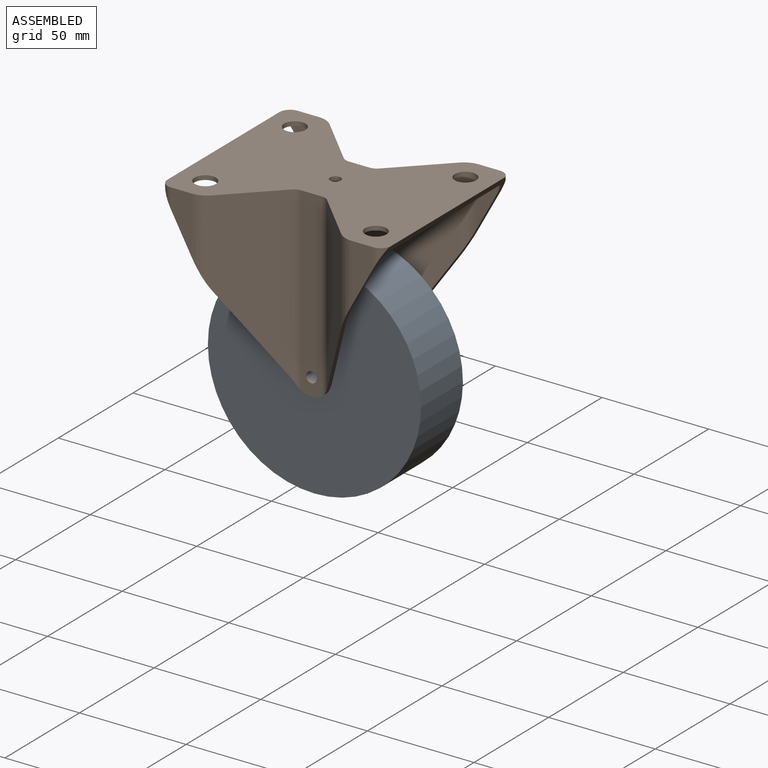
[diagram: assembled view]
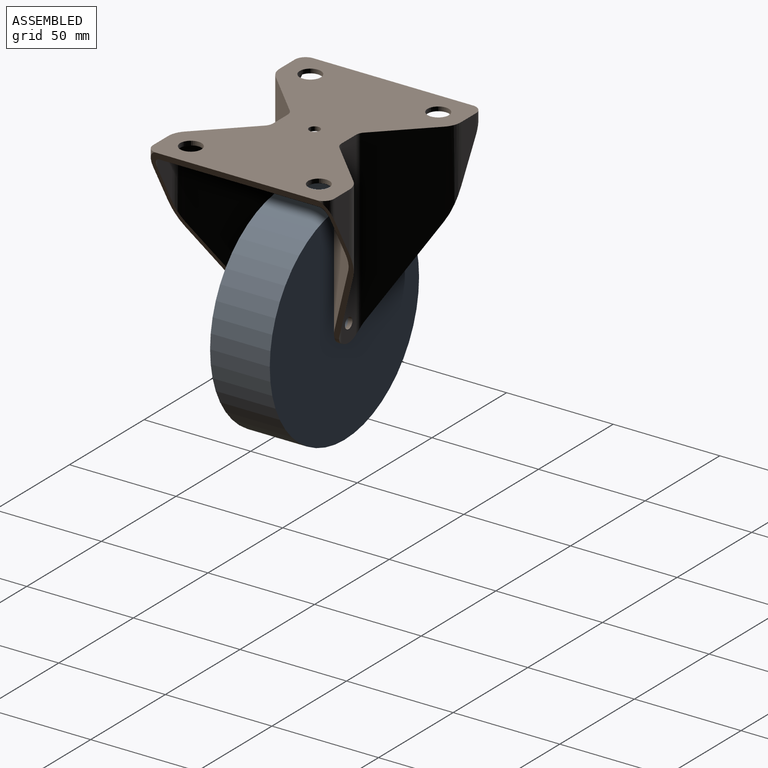
[diagram: assembled view, second angle]
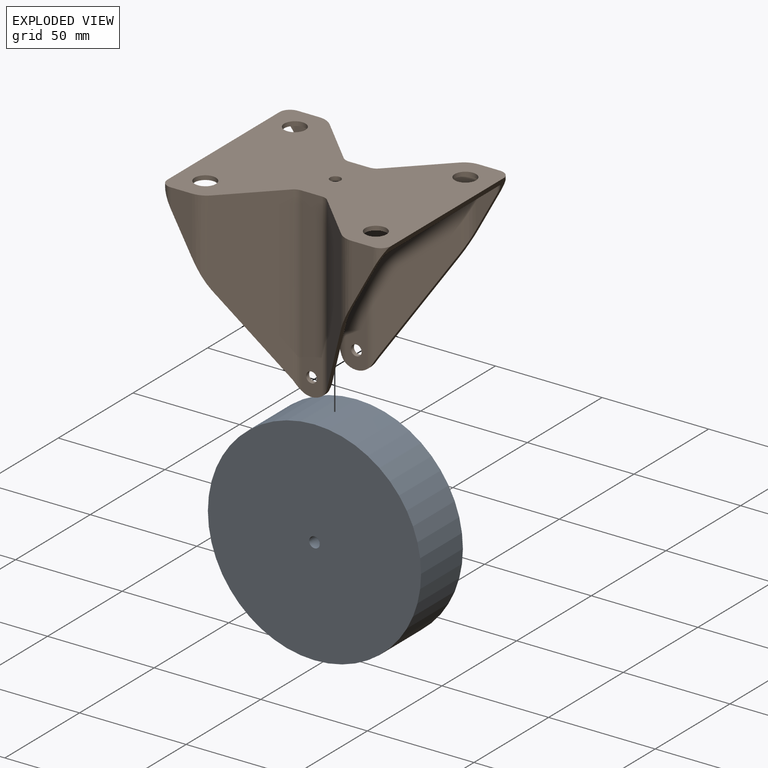
[diagram: exploded view]
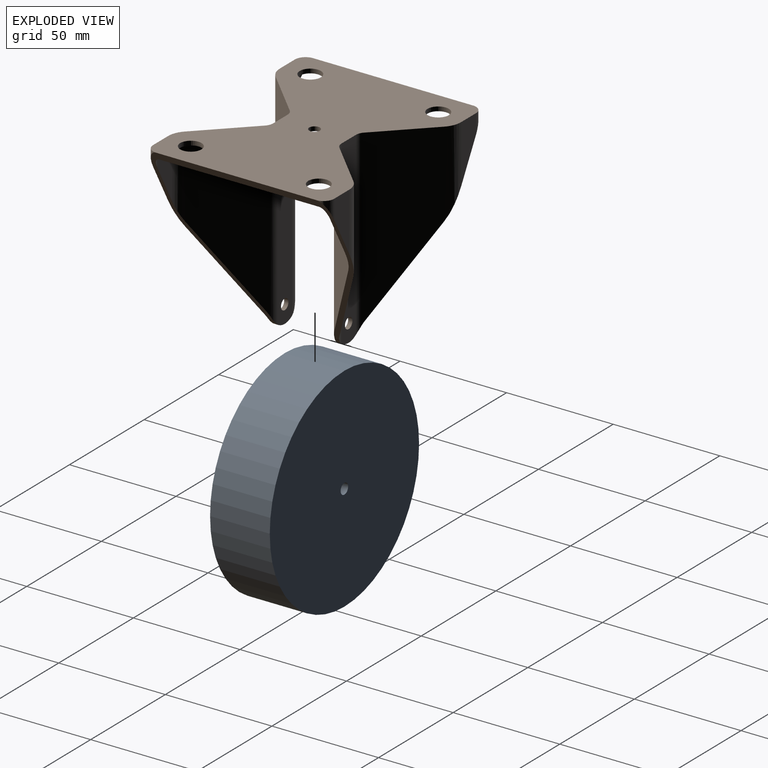
[diagram: exploded view, second angle]
ASSEMBLY  parts=2 mates=2
PART A: 4 faces, bbox 100x28x100 mm
  f0: cylinder r=2.5mm len=28mm, axis (0,1,0), area 439.8mm2, adj f2,f3
  f1: cylinder r=50mm len=100mm, axis (0,1,0), area 8796.5mm2, adj f2,f3
  f2: plane 100x100mm, normal (0,-1,0), area 7834.3mm2, adj f0,f1
  f3: plane 100x100mm, normal (0,1,0), area 7834.3mm2, adj f0,f1
PART B: 59 faces, bbox 105.1x85.1x86.4 mm
  f0: plane 27.21x10mm, normal (0,-1,0), area 181.4mm2, adj f30,f38,f39,f54
  f1: plane 86.32x9.57mm, normal (0,-1,0), area 802.1mm2, adj f5,f13,f30,f53,f58
  f2: plane 86.32x9.57mm, normal (0,1,0), area 802.1mm2, adj f6,f18,f30,f52,f57
  f3: plane 84.32x9.57mm, normal (0,1,0), area 783mm2, adj f7,f9,f23,f53,f58
  f4: plane 84.32x9.57mm, normal (0,-1,0), area 783mm2, adj f8,f9,f24,f52,f57
  f5: cylinder r=5mm len=84.81mm, axis (0,0,1), area 325mm2, adj f1,f30,f40,f53,f54
  f6: cylinder r=5mm len=84.81mm, axis (0,0,1), area 325mm2, adj f2,f30,f41,f52,f54
  f7: cylinder r=7mm len=82.81mm, axis (0,0,1), area 437.2mm2, adj f3,f9,f43,f53,f54
  f8: cylinder r=7mm len=82.81mm, axis (0,0,1), area 437.2mm2, adj f4,f9,f50,f52,f54
  f9: plane 101x81mm, normal (0,0,-1), area 5618.9mm2, adj f3,f4,f7,f8,f19,f20,f21,f22
  f10: plane 27.21x10mm, normal (0,1,0), area 181.4mm2, adj f11,f16,f30,f51
  f11: cylinder r=5mm len=9.07mm, axis (0,0,-1), area 25.9mm2, adj f10,f30,f51
  f12: cylinder r=5mm len=9.07mm, axis (0,0,-1), area 25.9mm2, adj f30,f32,f51
  f13: cylinder r=5mm len=84.81mm, axis (0,0,1), area 325mm2, adj f1,f14,f30,f51,f53
  f14: plane 80.14x22.11mm, normal (0.71,-0.71,0), area 1878.6mm2, adj f13,f15,f30,f51
  f15: cylinder r=10mm len=40.04mm, axis (0,0,1), area 266.8mm2, adj f14,f30,f32,f51
  f16: cylinder r=10mm len=40.04mm, axis (0,0,1), area 266.8mm2, adj f10,f17,f30,f51
  f17: plane 80.14x22.11mm, normal (0.71,0.71,0), area 1878.6mm2, adj f16,f18,f30,f51
  f18: cylinder r=5mm len=84.81mm, axis (0,0,1), area 325mm2, adj f2,f17,f30,f51,f52
  f19: cylinder r=3mm len=7.07mm, axis (0,0,1), area 17mm2, adj f9,f20,f51,f55
  f20: plane 25.21x10mm, normal (0,1,0), area 161.4mm2, adj f9,f19,f21,f51
  f21: cylinder r=8mm len=35.47mm, axis (0,0,1), area 192.4mm2, adj f9,f20,f22,f51
  f22: plane 75.57x22.11mm, normal (-0.71,0.71,0), area 1735.8mm2, adj f9,f21,f23,f51
  f23: cylinder r=7mm len=82.81mm, axis (0,0,1), area 437.2mm2, adj f3,f9,f22,f51,f53
  f24: cylinder r=7mm len=82.81mm, axis (0,0,1), area 437.2mm2, adj f4,f9,f25,f51,f52
  f25: plane 75.57x22.11mm, normal (-0.71,-0.71,0), area 1735.8mm2, adj f9,f24,f26,f51
  f26: cylinder r=8mm len=35.47mm, axis (0,0,1), area 192.4mm2, adj f9,f25,f27,f51
  f27: plane 25.21x10mm, normal (0,-1,0), area 161.4mm2, adj f9,f26,f28,f51
  f28: cylinder r=3mm len=7.07mm, axis (0,0,1), area 17mm2, adj f9,f27,f51,f55
  f29: plane 27.21x10mm, normal (0,1,0), area 181.4mm2, adj f30,f31,f42,f54
  f30: plane 105x85mm, normal (0,0,1), area 6431.9mm2, adj f0,f1,f2,f5,f6,f10,f11,f12
  f31: cylinder r=5mm len=9.07mm, axis (0,0,-1), area 25.9mm2, adj f29,f30,f54
  f32: plane 27.21x10mm, normal (0,-1,0), area 181.4mm2, adj f12,f15,f30,f51
  f33: cylinder r=5mm len=10mm, axis (0,0,-1), area 62.8mm2, adj f9,f30
  f34: cylinder r=5mm len=10mm, axis (0,0,-1), area 62.8mm2, adj f9,f30
  f35: cylinder r=5mm len=10mm, axis (0,0,-1), area 62.8mm2, adj f9,f30
  f36: cylinder r=5mm len=10mm, axis (0,0,-1), area 62.8mm2, adj f9,f30
  f37: cylinder r=2.5mm len=5mm, axis (0,0,-1), area 31.4mm2, adj f9,f30
  f38: cylinder r=5mm len=9.07mm, axis (0,0,-1), area 25.9mm2, adj f0,f30,f54
  f39: cylinder r=10mm len=40.04mm, axis (0,0,1), area 266.8mm2, adj f0,f30,f40,f54
  f40: plane 80.14x22.11mm, normal (-0.71,-0.71,0), area 1878.6mm2, adj f5,f30,f39,f54
  f41: plane 80.14x22.11mm, normal (-0.71,0.71,0), area 1878.6mm2, adj f6,f30,f42,f54
  f42: cylinder r=10mm len=40.04mm, axis (0,0,1), area 266.8mm2, adj f29,f30,f41,f54
  f43: plane 75.57x22.11mm, normal (0.71,0.71,0), area 1735.8mm2, adj f7,f9,f44,f54
  f44: cylinder r=8mm len=35.47mm, axis (0,0,1), area 192.4mm2, adj f9,f43,f45,f54
  f45: plane 25.21x10mm, normal (0,1,0), area 161.4mm2, adj f9,f44,f46,f54
  f46: cylinder r=3mm len=7.07mm, axis (0,0,1), area 17mm2, adj f9,f45,f54,f56
  f47: cylinder r=3mm len=7.07mm, axis (0,0,1), area 17mm2, adj f9,f48,f54,f56
  f48: plane 25.21x10mm, normal (0,-1,0), area 161.4mm2, adj f9,f47,f49,f54
  f49: cylinder r=8mm len=35.47mm, axis (0,0,1), area 192.4mm2, adj f9,f48,f50,f54
  f50: plane 75.57x22.11mm, normal (0.71,-0.71,0), area 1735.8mm2, adj f8,f9,f49,f54
  f51: plane 85.09x82.11mm, normal (-0.88,0,-0.48), area 780.9mm2, adj f10,f11,f12,f13,f14,f15,f16,f17
  f52: cylinder r=8.32mm len=14.58mm, axis (0,-1,0), area 35.6mm2, adj f2,f4,f6,f8,f18,f24,f51,f54
  f53: cylinder r=8.32mm len=14.58mm, axis (0,-1,0), area 35.6mm2, adj f1,f3,f5,f7,f13,f23,f51,f54
  f54: plane 85.09x82.11mm, normal (0.88,0,-0.48), area 780.9mm2, adj f0,f5,f6,f7,f8,f29,f30,f31
  f55: plane 75x1.63mm, normal (1,0,0), area 122.1mm2, adj f9,f19,f28,f51
  f56: plane 75x1.63mm, normal (-1,0,0), area 122.1mm2, adj f9,f46,f47,f54
  f57: cylinder r=2.5mm len=5mm, axis (0,-1,0), area 31.4mm2, adj f2,f4
  f58: cylinder r=2.5mm len=5mm, axis (0,-1,0), area 31.4mm2, adj f1,f3
PLACE A rot(axis=(0,1,0),90deg) t=(0,0,-76)mm
PLACE B at identity fixed
MATE planar A.f1 <-> B.f3  axis (0,-1,0) through (0,-14,-76)mm
MATE cylindrical A.f1 <-> B.f52  axis (0,-1,0) through (0,-14,-76)mm
